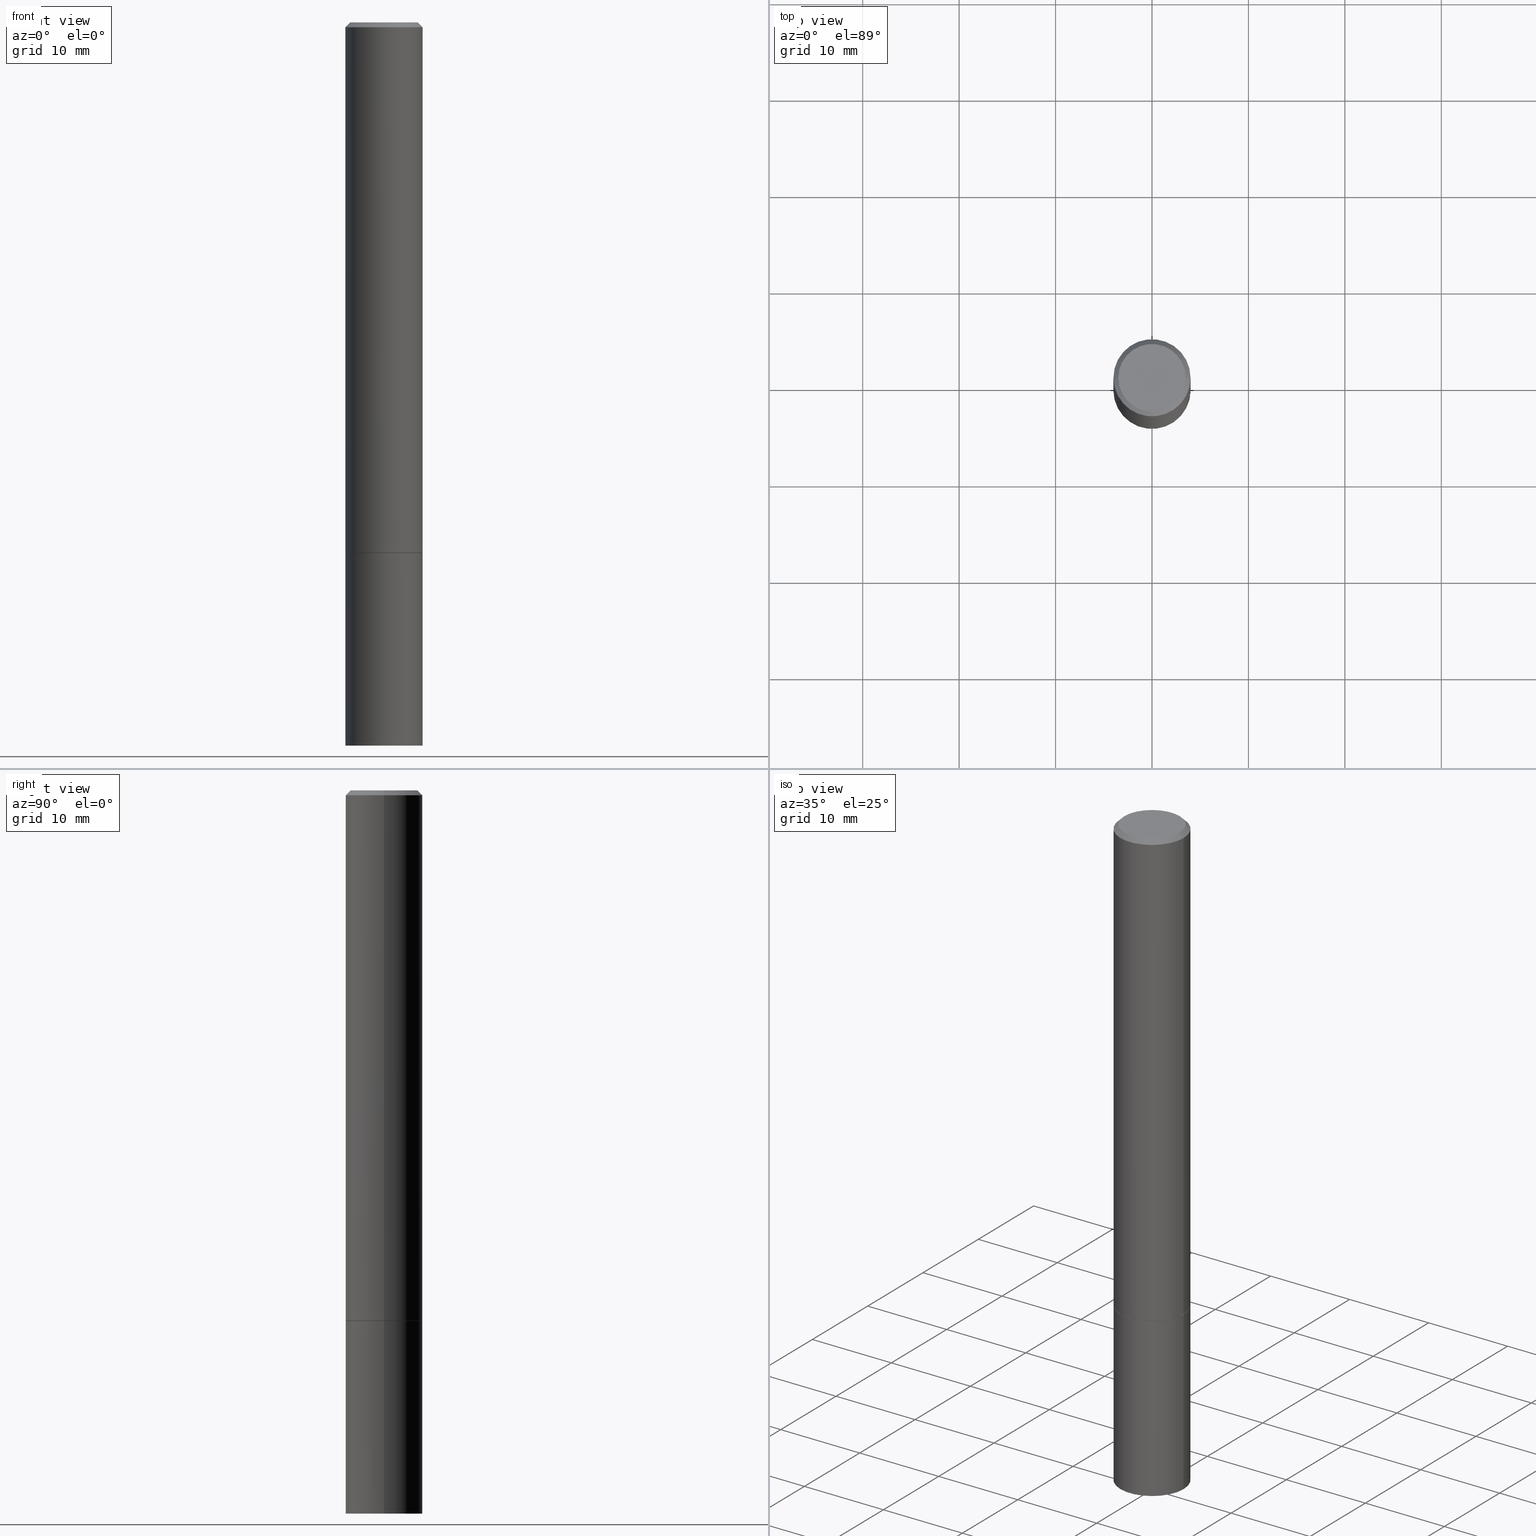
[diagram: canonical four-view strip — front | top / right | iso, engineering-drawing reading convention]
A machine part, canonical four-view strip (front | top / right | iso — engineering-drawing reading convention). The complete STEP part file that produces these views, byte-faithful:
ISO-10303-21;
HEADER;
FILE_DESCRIPTION (( 'STEP AP203' ),
    '1' );
FILE_NAME ('74348.STEP',
    '2024-02-29T08:54:08',
    ( '' ),
    ( '' ),
    'SwSTEP 2.0',
    'SolidWorks 2023',
    '' );
FILE_SCHEMA (( 'CONFIG_CONTROL_DESIGN' ));
ENDSEC;

DATA;
#1 = EDGE_CURVE ( 'NONE', #10, #33, #126, .T. ) ;
#2 = AXIS2_PLACEMENT_3D ( 'NONE', #4, #61, #149 ) ;
#3 = FACE_OUTER_BOUND ( 'NONE', #129, .T. ) ;
#4 = CARTESIAN_POINT ( 'NONE',  ( 4.890937612370282792E-31, -6.982962677686303935E-17, -0.02000000000000003858 ) ) ;
#5 =( NAMED_UNIT ( * ) PLANE_ANGLE_UNIT ( ) SI_UNIT ( $, .RADIAN. ) );
#6 = PERSON_AND_ORGANIZATION ( #360, #167 ) ;
#7 = AXIS2_PLACEMENT_3D ( 'NONE', #169, #203, #56 ) ;
#8 = ORIENTED_EDGE ( 'NONE', *, *, #107, .F. ) ;
#9 = DIRECTION ( 'NONE',  ( 0.000000000000000000, 0.000000000000000000, 1.000000000000000000 ) ) ;
#10 = VERTEX_POINT ( 'NONE', #97 ) ;
#11 = ADVANCED_FACE ( 'NONE', ( #325 ), #48, .T. ) ;
#12 = SHAPE_DEFINITION_REPRESENTATION ( #197, #286 ) ;
#13 = ORIENTED_EDGE ( 'NONE', *, *, #25, .F. ) ;
#14 = CC_DESIGN_DATE_AND_TIME_ASSIGNMENT ( #71, #154, ( #340 ) ) ;
#15 = VERTEX_POINT ( 'NONE', #249 ) ;
#16 = EDGE_LOOP ( 'NONE', ( #313, #274, #172, #155 ) ) ;
#17 = CARTESIAN_POINT ( 'NONE',  ( 7.220980290903470182E-29, -1.030964609733603853E-14, -2.952799999999999869 ) ) ;
#18 = DIRECTION ( 'NONE',  ( -2.445468806185136597E-29, 3.491481338843145583E-15, 1.000000000000000000 ) ) ;
#19 = FACE_OUTER_BOUND ( 'NONE', #353, .T. ) ;
#20 = DIRECTION ( 'NONE',  ( 1.000000000000000000, -6.982962677686261977E-15, 0.000000000000000000 ) ) ;
#21 = CARTESIAN_POINT ( 'NONE',  ( 9.601573681818595033E-16, 0.1374999999999997058, -4.779444278458812147E-16 ) ) ;
#22 = CIRCLE ( 'NONE', #242, 0.1574999999999996958 ) ;
#23 = DIRECTION ( 'NONE',  ( -2.445468806185136597E-29, 3.491481338843145583E-15, 1.000000000000000000 ) ) ;
#24 = DIRECTION ( 'NONE',  ( 1.000000000000000000, -6.982962677686265922E-15, 4.876176775795935793E-29 ) ) ;
#25 = EDGE_CURVE ( 'NONE', #241, #180, #301, .T. ) ;
#26 = DIRECTION ( 'NONE',  ( 1.000000000000000000, -6.982962677686268288E-15, 0.000000000000000000 ) ) ;
#27 = EDGE_LOOP ( 'NONE', ( #42, #207, #329, #210 ) ) ;
#28 = AXIS2_PLACEMENT_3D ( 'NONE', #284, #364, #24 ) ;
#29 = CARTESIAN_POINT ( 'NONE',  ( 5.295418152913294345E-29, -7.560453691130947423E-15, -2.165399999999999991 ) ) ;
#30 = CYLINDRICAL_SURFACE ( 'NONE', #7, 0.1574999999999998346 ) ;
#31 = APPROVAL ( #216, 'UNSPECIFIED' ) ;
#32 = CALENDAR_DATE ( 2024, 29, 2 ) ;
#33 = VERTEX_POINT ( 'NONE', #134 ) ;
#34 = PERSON_AND_ORGANIZATION ( #360, #167 ) ;
#35 = ORIENTED_EDGE ( 'NONE', *, *, #357, .F. ) ;
#36 = ADVANCED_FACE ( 'NONE', ( #19 ), #334, .F. ) ;
#37 = CALENDAR_DATE ( 2024, 29, 2 ) ;
#38 = EDGE_LOOP ( 'NONE', ( #226, #57, #63, #72 ) ) ;
#39 = VERTEX_POINT ( 'NONE', #137 ) ;
#40 = APPLICATION_PROTOCOL_DEFINITION ( 'international standard', 'config_control_design', 1994, #83 ) ;
#41 = LOCAL_TIME ( 3, 54, 8.000000000000000000, #125 ) ;
#42 = ORIENTED_EDGE ( 'NONE', *, *, #295, .F. ) ;
#43 = VECTOR ( 'NONE', #358, 39.37007874015748143 ) ;
#44 = DIRECTION ( 'NONE',  ( 2.445468806185136597E-29, -3.491481338843145583E-15, -1.000000000000000000 ) ) ;
#45 = DIRECTION ( 'NONE',  ( -2.445468806185136597E-29, 3.491481338843145583E-15, 1.000000000000000000 ) ) ;
#46 = DIRECTION ( 'NONE',  ( -1.000000000000000000, 6.982962677686265922E-15, -4.876176775795935793E-29 ) ) ;
#47 = CIRCLE ( 'NONE', #146, 0.1565000000000000002 ) ;
#48 = CONICAL_SURFACE ( 'NONE', #122, 0.1565000000000000002, 0.7853981633973801113 ) ;
#49 = EDGE_CURVE ( 'NONE', #271, #354, #229, .T. ) ;
#50 = DIRECTION ( 'NONE',  ( -0.7071067811865466846, 2.468850131082247989E-15, -0.7071067811865483499 ) ) ;
#51 = DIRECTION ( 'NONE',  ( 1.000000000000000000, -6.982962677686265922E-15, 4.876176775795935232E-29 ) ) ;
#52 = CC_DESIGN_APPROVAL ( #192, ( #79 ) ) ;
#53 = CIRCLE ( 'NONE', #253, 0.1574999999999999178 ) ;
#54 = FACE_OUTER_BOUND ( 'NONE', #102, .T. ) ;
#55 = ADVANCED_FACE ( 'NONE', ( #161 ), #333, .T. ) ;
#56 = DIRECTION ( 'NONE',  ( 1.000000000000000000, -6.982962677686265922E-15, 4.876176775795935793E-29 ) ) ;
#57 = ORIENTED_EDGE ( 'NONE', *, *, #70, .T. ) ;
#58 = CARTESIAN_POINT ( 'NONE',  ( 5.295418152913294345E-29, -7.560453691130947423E-15, -2.165399999999999991 ) ) ;
#59 = APPROVAL_PERSON_ORGANIZATION ( #209, #31, #262 ) ;
#60 = ADVANCED_FACE ( 'NONE', ( #110 ), #337, .F. ) ;
#61 = DIRECTION ( 'NONE',  ( 2.445468806185136597E-29, -3.491481338843145583E-15, -1.000000000000000000 ) ) ;
#62 = CALENDAR_DATE ( 2024, 29, 2 ) ;
#63 = ORIENTED_EDGE ( 'NONE', *, *, #78, .F. ) ;
#64 = CALENDAR_DATE ( 2024, 29, 2 ) ;
#65 = ORIENTED_EDGE ( 'NONE', *, *, #78, .T. ) ;
#66 = APPROVAL_PERSON_ORGANIZATION ( #156, #115, #211 ) ;
#67 = COORDINATED_UNIVERSAL_TIME_OFFSET ( 5, 0, .BEHIND. ) ;
#68 = CIRCLE ( 'NONE', #317, 0.1565000000000000002 ) ;
#69 = CARTESIAN_POINT ( 'NONE',  ( 5.295418152913294345E-29, -7.560453691130947423E-15, -2.165399999999999991 ) ) ;
#70 = EDGE_CURVE ( 'NONE', #298, #244, #330, .T. ) ;
#71 = DATE_AND_TIME ( #238, #41 ) ;
#72 = ORIENTED_EDGE ( 'NONE', *, *, #1, .F. ) ;
#73 = ORIENTED_EDGE ( 'NONE', *, *, #357, .T. ) ;
#74 = CYLINDRICAL_SURFACE ( 'NONE', #181, 0.1575000000000000011 ) ;
#75 = CIRCLE ( 'NONE', #311, 0.1574999999999996958 ) ;
#76 = DIRECTION ( 'NONE',  ( -2.445468806185136597E-29, 3.491481338843145583E-15, 1.000000000000000000 ) ) ;
#77 = DIRECTION ( 'NONE',  ( -2.445468806185136877E-29, 3.491481338843145188E-15, 1.000000000000000000 ) ) ;
#78 = EDGE_CURVE ( 'NONE', #33, #244, #266, .T. ) ;
#79 = PRODUCT_DEFINITION_FORMATION_WITH_SPECIFIED_SOURCE ( 'ANY', '', #331, .NOT_KNOWN. ) ;
#80 = CARTESIAN_POINT ( 'NONE',  ( 0.000000000000000000, 0.000000000000000000, 0.000000000000000000 ) ) ;
#81 = AXIS2_PLACEMENT_3D ( 'NONE', #160, #250, #361 ) ;
#82 = LINE ( 'NONE', #218, #111 ) ;
#83 = APPLICATION_CONTEXT ( 'configuration controlled 3d designs of mechanical parts and assemblies' ) ;
#84 = CARTESIAN_POINT ( 'NONE',  ( 1.099816621735659069E-15, 0.1574999999999896760, -2.952800000000000313 ) ) ;
#85 = FACE_OUTER_BOUND ( 'NONE', #27, .T. ) ;
#86 = AXIS2_PLACEMENT_3D ( 'NONE', #162, #336, #359 ) ;
#87 =( CONVERSION_BASED_UNIT ( 'INCH', #342 ) LENGTH_UNIT ( ) NAMED_UNIT ( #273 ) );
#88 = CYLINDRICAL_SURFACE ( 'NONE', #117, 0.1574999999999998346 ) ;
#89 = DIRECTION ( 'NONE',  ( 1.000000000000000000, -6.982962677686265922E-15, 0.000000000000000000 ) ) ;
#90 = CC_DESIGN_APPROVAL ( #115, ( #340 ) ) ;
#91 = VECTOR ( 'NONE', #349, 39.37007874015748143 ) ;
#92 = COORDINATED_UNIVERSAL_TIME_OFFSET ( 5, 0, .BEHIND. ) ;
#93 = APPLICATION_PROTOCOL_DEFINITION ( 'international standard', 'config_control_design', 1994, #158 ) ;
#94 = ORIENTED_EDGE ( 'NONE', *, *, #362, .T. ) ;
#95 = CARTESIAN_POINT ( 'NONE',  ( 0.000000000000000000, 0.000000000000000000, 0.000000000000000000 ) ) ;
#96 = ADVANCED_FACE ( 'NONE', ( #252 ), #74, .T. ) ;
#97 = CARTESIAN_POINT ( 'NONE',  ( 0.1565000000000000002, -8.653287350188848100E-15, -2.165399999999999991 ) ) ;
#98 = DATE_AND_TIME ( #37, #287 ) ;
#99 = CIRCLE ( 'NONE', #307, 0.1374999999999997058 ) ;
#100 = ORIENTED_EDGE ( 'NONE', *, *, #362, .F. ) ;
#101 = PERSON_AND_ORGANIZATION ( #360, #167 ) ;
#102 = EDGE_LOOP ( 'NONE', ( #65, #177, #213, #133 ) ) ;
#103 = PRODUCT_DEFINITION ( 'UNKNOWN', '', #79, #290 ) ;
#104 = CARTESIAN_POINT ( 'NONE',  ( 4.890937612370282792E-31, -6.982962677686303935E-17, -0.02000000000000003858 ) ) ;
#105 = LINE ( 'NONE', #247, #43 ) ;
#106 = AXIS2_PLACEMENT_3D ( 'NONE', #201, #202, #289 ) ;
#107 = EDGE_CURVE ( 'NONE', #217, #132, #82, .T. ) ;
#108 = LINE ( 'NONE', #335, #235 ) ;
#109 = DIRECTION ( 'NONE',  ( 2.438088387897960049E-29, -3.491481338843145188E-15, -1.000000000000000000 ) ) ;
#110 = FACE_OUTER_BOUND ( 'NONE', #157, .T. ) ;
#111 = VECTOR ( 'NONE', #196, 39.37007874015748143 ) ;
#112 = DIRECTION ( 'NONE',  ( -2.445468806185136597E-29, 3.491481338843145583E-15, 1.000000000000000000 ) ) ;
#113 = EDGE_CURVE ( 'NONE', #39, #15, #279, .T. ) ;
#114 = FACE_OUTER_BOUND ( 'NONE', #185, .T. ) ;
#115 = APPROVAL ( #348, 'UNSPECIFIED' ) ;
#116 = CARTESIAN_POINT ( 'NONE',  ( 0.1374999999999997058, -1.046838268059730322E-15, 4.268512490107428597E-18 ) ) ;
#117 = AXIS2_PLACEMENT_3D ( 'NONE', #288, #112, #173 ) ;
#118 = DIRECTION ( 'NONE',  ( -2.445468806185136597E-29, 3.491481338843145583E-15, 1.000000000000000000 ) ) ;
#119 = EDGE_CURVE ( 'NONE', #180, #271, #189, .T. ) ;
#120 = DIRECTION ( 'NONE',  ( 1.000000000000000000, -6.982962677686265922E-15, 4.876173381029110692E-29 ) ) ;
#121 = CIRCLE ( 'NONE', #272, 0.1374999999999997058 ) ;
#122 = AXIS2_PLACEMENT_3D ( 'NONE', #69, #182, #297 ) ;
#123 = ORIENTED_EDGE ( 'NONE', *, *, #260, .F. ) ;
#124 = ADVANCED_FACE ( 'NONE', ( #138 ), #223, .T. ) ;
#125 = COORDINATED_UNIVERSAL_TIME_OFFSET ( 5, 0, .BEHIND. ) ;
#126 = LINE ( 'NONE', #239, #91 ) ;
#127 = CC_DESIGN_PERSON_AND_ORGANIZATION_ASSIGNMENT ( #6, #292, ( #79 ) ) ;
#128 = PERSON_AND_ORGANIZATION_ROLE ( 'design_supplier' ) ;
#129 = EDGE_LOOP ( 'NONE', ( #159, #320, #294, #100 ) ) ;
#130 = PERSON_AND_ORGANIZATION ( #360, #167 ) ;
#131 = EDGE_CURVE ( 'NONE', #298, #10, #68, .T. ) ;
#132 = VERTEX_POINT ( 'NONE', #166 ) ;
#133 = ORIENTED_EDGE ( 'NONE', *, *, #183, .F. ) ;
#134 = CARTESIAN_POINT ( 'NONE',  ( 0.1574999999999999178, -8.656778831527689529E-15, -2.164399999999999658 ) ) ;
#135 = DIRECTION ( 'NONE',  ( 1.000000000000000000, -6.982962677686267499E-15, 0.000000000000000000 ) ) ;
#136 = VECTOR ( 'NONE', #303, 39.37007874015748143 ) ;
#137 = CARTESIAN_POINT ( 'NONE',  ( -0.1374999999999997058, 9.950721815702905608E-16, 4.268512490093574228E-18 ) ) ;
#138 = FACE_OUTER_BOUND ( 'NONE', #237, .T. ) ;
#139 = CARTESIAN_POINT ( 'NONE',  ( 5.295418152913294345E-29, -7.560453691130947423E-15, -2.165399999999999991 ) ) ;
#140 = CC_DESIGN_DATE_AND_TIME_ASSIGNMENT ( #296, #328, ( #103 ) ) ;
#141 = AXIS2_PLACEMENT_3D ( 'NONE', #139, #280, #355 ) ;
#142 = DIRECTION ( 'NONE',  ( -2.445468806185136597E-29, 3.491481338843145583E-15, 1.000000000000000000 ) ) ;
#143 =( LENGTH_UNIT ( ) NAMED_UNIT ( * ) SI_UNIT ( $, .METRE. ) );
#144 = ADVANCED_FACE ( 'NONE', ( #281 ), #351, .T. ) ;
#145 = CARTESIAN_POINT ( 'NONE',  ( -0.1575000000000000011, -7.815945085411336161E-15, -2.165399999999999991 ) ) ;
#146 = AXIS2_PLACEMENT_3D ( 'NONE', #29, #118, #338 ) ;
#147 = CLOSED_SHELL ( 'NONE', ( #124, #343, #36, #96 ) ) ;
#148 = FACE_OUTER_BOUND ( 'NONE', #300, .T. ) ;
#149 = DIRECTION ( 'NONE',  ( -1.000000000000000000, 6.982962677686265922E-15, 0.000000000000000000 ) ) ;
#150 = PERSON_AND_ORGANIZATION_ROLE ( 'design_owner' ) ;
#151 = ORIENTED_EDGE ( 'NONE', *, *, #49, .T. ) ;
#152 = SECURITY_CLASSIFICATION_LEVEL ( 'unclassified' ) ;
#153 = ORIENTED_EDGE ( 'NONE', *, *, #131, .F. ) ;
#154 = DATE_TIME_ROLE ( 'classification_date' ) ;
#155 = ORIENTED_EDGE ( 'NONE', *, *, #212, .F. ) ;
#156 = PERSON_AND_ORGANIZATION ( #360, #167 ) ;
#157 = EDGE_LOOP ( 'NONE', ( #73, #243 ) ) ;
#158 = APPLICATION_CONTEXT ( 'configuration controlled 3d designs of mechanical parts and assemblies' ) ;
#159 = ORIENTED_EDGE ( 'NONE', *, *, #195, .F. ) ;
#160 = CARTESIAN_POINT ( 'NONE',  ( 5.295418152913294345E-29, -7.560453691130947423E-15, -2.165399999999999991 ) ) ;
#161 = FACE_OUTER_BOUND ( 'NONE', #16, .T. ) ;
#162 = CARTESIAN_POINT ( 'NONE',  ( 5.292972684107108742E-29, -7.556962209792102838E-15, -2.164399999999999658 ) ) ;
#163 = CONICAL_SURFACE ( 'NONE', #2, 0.1574999999999996958, 0.7853981633974471688 ) ;
#164 = CARTESIAN_POINT ( 'NONE',  ( -0.1575000000000000011, 1.119104808822157801E-15, -7.747322767151475583E-30 ) ) ;
#165 = CC_DESIGN_PERSON_AND_ORGANIZATION_ASSIGNMENT ( #299, #150, ( #331 ) ) ;
#166 = CARTESIAN_POINT ( 'NONE',  ( 0.1574999999999996958, -1.150358061425877105E-15, -0.02000000000000003858 ) ) ;
#167 = ORGANIZATION ( 'UNSPECIFIED', 'UNSPECIFIED', '' ) ;
#168 = MANIFOLD_SOLID_BREP ( 'Body-Move/Copy2[1]', #147 ) ;
#169 = CARTESIAN_POINT ( 'NONE',  ( 0.000000000000000000, 0.000000000000000000, 0.000000000000000000 ) ) ;
#170 = DIRECTION ( 'NONE',  ( -1.000000000000000000, 6.982962677686265922E-15, -4.876176775795935793E-29 ) ) ;
#171 = MANIFOLD_SOLID_BREP ( 'Body-Move/Copy2[2]', #174 ) ;
#172 = ORIENTED_EDGE ( 'NONE', *, *, #1, .T. ) ;
#173 = DIRECTION ( 'NONE',  ( 1.000000000000000000, -6.982962677686265922E-15, 4.876176775795935793E-29 ) ) ;
#174 = CLOSED_SHELL ( 'NONE', ( #11, #248, #277, #144, #314, #55, #322, #60 ) ) ;
#175 = DIRECTION ( 'NONE',  ( -2.445468806185136597E-29, 3.491481338843145583E-15, 1.000000000000000000 ) ) ;
#176 = DATE_AND_TIME ( #62, #204 ) ;
#177 = ORIENTED_EDGE ( 'NONE', *, *, #195, .T. ) ;
#178 = APPROVAL_ROLE ( '' ) ;
#179 = PRODUCT_RELATED_PRODUCT_CATEGORY ( 'detail', '', ( #331 ) ) ;
#180 = VERTEX_POINT ( 'NONE', #245 ) ;
#181 = AXIS2_PLACEMENT_3D ( 'NONE', #80, #76, #51 ) ;
#182 = DIRECTION ( 'NONE',  ( -2.445468806185136597E-29, 3.491481338843145583E-15, 1.000000000000000000 ) ) ;
#183 = EDGE_CURVE ( 'NONE', #33, #132, #105, .T. ) ;
#184 = PERSON_AND_ORGANIZATION_ROLE ( 'classification_officer' ) ;
#185 = EDGE_LOOP ( 'NONE', ( #261, #153 ) ) ;
#186 = EDGE_LOOP ( 'NONE', ( #285, #350, #323, #291 ) ) ;
#187 = AXIS2_PLACEMENT_3D ( 'NONE', #84, #231, #170 ) ;
#188 = VECTOR ( 'NONE', #50, 39.37007874015748143 ) ;
#189 = LINE ( 'NONE', #164, #136 ) ;
#190 = CARTESIAN_POINT ( 'NONE',  ( 1.099816621735639545E-15, 0.1574999999999924516, -2.165400000000000436 ) ) ;
#191 = CARTESIAN_POINT ( 'NONE',  ( 5.292972684107108742E-29, -7.556962209792102838E-15, -2.164399999999999658 ) ) ;
#192 = APPROVAL ( #318, 'UNSPECIFIED' ) ;
#193 = CC_DESIGN_SECURITY_CLASSIFICATION ( #340, ( #79 ) ) ;
#194 = DIRECTION ( 'NONE',  ( -2.445468806185136597E-29, 3.491481338843145583E-15, 1.000000000000000000 ) ) ;
#195 = EDGE_CURVE ( 'NONE', #244, #15, #108, .T. ) ;
#196 = DIRECTION ( 'NONE',  ( 0.7071067811865466846, -7.319954787623252890E-15, -0.7071067811865483499 ) ) ;
#197 = PRODUCT_DEFINITION_SHAPE ( 'NONE', 'NONE',  #103 ) ;
#198 = DIRECTION ( 'NONE',  ( -2.445468806185136597E-29, 3.491481338843145583E-15, 1.000000000000000000 ) ) ;
#199 = DIRECTION ( 'NONE',  ( -2.445468806185136597E-29, 3.491481338843145583E-15, 1.000000000000000000 ) ) ;
#200 = ORIENTED_EDGE ( 'NONE', *, *, #25, .T. ) ;
#201 = CARTESIAN_POINT ( 'NONE',  ( 7.220980290903470182E-29, -1.030964609733603853E-14, -2.952799999999999869 ) ) ;
#202 = DIRECTION ( 'NONE',  ( -2.445468806185136597E-29, 3.491481338843145583E-15, 1.000000000000000000 ) ) ;
#203 = DIRECTION ( 'NONE',  ( -2.445468806185136597E-29, 3.491481338843145583E-15, 1.000000000000000000 ) ) ;
#204 = LOCAL_TIME ( 3, 54, 8.000000000000000000, #67 ) ;
#205 = CC_DESIGN_PERSON_AND_ORGANIZATION_ASSIGNMENT ( #101, #270, ( #103 ) ) ;
#206 =( NAMED_UNIT ( * ) SI_UNIT ( $, .STERADIAN. ) SOLID_ANGLE_UNIT ( ) );
#207 = ORIENTED_EDGE ( 'NONE', *, *, #107, .T. ) ;
#208 = CC_DESIGN_PERSON_AND_ORGANIZATION_ASSIGNMENT ( #34, #128, ( #79 ) ) ;
#209 = PERSON_AND_ORGANIZATION ( #360, #167 ) ;
#210 = ORIENTED_EDGE ( 'NONE', *, *, #113, .F. ) ;
#211 = APPROVAL_ROLE ( '' ) ;
#212 = EDGE_CURVE ( 'NONE', #244, #33, #53, .T. ) ;
#213 = ORIENTED_EDGE ( 'NONE', *, *, #232, .F. ) ;
#214 = AXIS2_PLACEMENT_3D ( 'NONE', #304, #45, #276 ) ;
#215 = ORIENTED_EDGE ( 'NONE', *, *, #255, .F. ) ;
#216 = APPROVAL_STATUS ( 'not_yet_approved' ) ;
#217 = VERTEX_POINT ( 'NONE', #116 ) ;
#218 = CARTESIAN_POINT ( 'NONE',  ( 0.1574999999999996958, -1.150358061425877105E-15, -0.02000000000000003858 ) ) ;
#219 = AXIS2_PLACEMENT_3D ( 'NONE', #17, #194, #20 ) ;
#220 = CARTESIAN_POINT ( 'NONE',  ( -0.1565000000000000002, -6.448454309666390039E-15, -2.165399999999999991 ) ) ;
#221 = CARTESIAN_POINT ( 'NONE',  ( -0.1574999999999996958, 1.029986994958721618E-15, -0.02000000000000003858 ) ) ;
#222 = DIRECTION ( 'NONE',  ( 2.438088387897960049E-29, -3.491481338843145188E-15, -1.000000000000000000 ) ) ;
#223 = CYLINDRICAL_SURFACE ( 'NONE', #214, 0.1575000000000000011 ) ;
#224 = CARTESIAN_POINT ( 'NONE',  ( 0.1575000000000000011, -1.140946271907162522E-14, -2.952799999999999869 ) ) ;
#225 = DIRECTION ( 'NONE',  ( 1.000000000000000000, -6.982962677686265922E-15, 4.876173381029110692E-29 ) ) ;
#226 = ORIENTED_EDGE ( 'NONE', *, *, #327, .T. ) ;
#227 = EDGE_CURVE ( 'NONE', #180, #241, #251, .T. ) ;
#228 = DIRECTION ( 'NONE',  ( -2.445468806185136877E-29, 3.491481338843145188E-15, 1.000000000000000000 ) ) ;
#229 = CIRCLE ( 'NONE', #81, 0.1575000000000000011 ) ;
#230 = CARTESIAN_POINT ( 'NONE',  ( -0.1574999999999999178, -2.694291109462323887E-15, -2.164399999999999658 ) ) ;
#231 = DIRECTION ( 'NONE',  ( 2.438088387897960049E-29, -3.491481338843145188E-15, -1.000000000000000000 ) ) ;
#232 = EDGE_CURVE ( 'NONE', #132, #15, #75, .T. ) ;
#233 = DATE_AND_TIME ( #32, #257 ) ;
#234 = APPROVAL_PERSON_ORGANIZATION ( #130, #192, #178 ) ;
#235 = VECTOR ( 'NONE', #77, 39.37007874015748143 ) ;
#236 = MECHANICAL_CONTEXT ( 'NONE', #83, 'mechanical' ) ;
#237 = EDGE_LOOP ( 'NONE', ( #200, #269, #215, #123 ) ) ;
#238 = CALENDAR_DATE ( 2024, 29, 2 ) ;
#239 = CARTESIAN_POINT ( 'NONE',  ( 0.1565000000000000002, -8.653287350188848100E-15, -2.165399999999999991 ) ) ;
#240 = PERSON_AND_ORGANIZATION ( #360, #167 ) ;
#241 = VERTEX_POINT ( 'NONE', #224 ) ;
#242 = AXIS2_PLACEMENT_3D ( 'NONE', #259, #283, #89 ) ;
#243 = ORIENTED_EDGE ( 'NONE', *, *, #295, .T. ) ;
#244 = VERTEX_POINT ( 'NONE', #230 ) ;
#245 = CARTESIAN_POINT ( 'NONE',  ( -0.1575000000000000011, -7.815945085411336161E-15, -2.952799999999999869 ) ) ;
#246 = AXIS2_PLACEMENT_3D ( 'NONE', #190, #222, #305 ) ;
#247 = CARTESIAN_POINT ( 'NONE',  ( 0.1574999999999998346, -1.099816621735585705E-15, 7.679978421878591026E-30 ) ) ;
#248 = ADVANCED_FACE ( 'NONE', ( #54 ), #30, .T. ) ;
#249 = CARTESIAN_POINT ( 'NONE',  ( -0.1574999999999996958, 1.029986994958721618E-15, -0.02000000000000003858 ) ) ;
#250 = DIRECTION ( 'NONE',  ( -2.445468806185136597E-29, 3.491481338843145583E-15, 1.000000000000000000 ) ) ;
#251 = CIRCLE ( 'NONE', #106, 0.1575000000000000011 ) ;
#252 = FACE_OUTER_BOUND ( 'NONE', #186, .T. ) ;
#253 = AXIS2_PLACEMENT_3D ( 'NONE', #191, #199, #366 ) ;
#254 = CARTESIAN_POINT ( 'NONE',  ( -1.043851414335219820E-46, 1.490343170380447200E-32, 4.268512490100411279E-18 ) ) ;
#255 = EDGE_CURVE ( 'NONE', #354, #271, #356, .T. ) ;
#256 = CARTESIAN_POINT ( 'NONE',  ( 0.1575000000000000011, -1.099816621735586889E-15, 7.679978421878598033E-30 ) ) ;
#257 = LOCAL_TIME ( 3, 54, 8.000000000000000000, #321 ) ;
#258 = PLANE ( 'NONE',  #28 ) ;
#259 = CARTESIAN_POINT ( 'NONE',  ( 4.890937612370282792E-31, -6.982962677686303935E-17, -0.02000000000000003858 ) ) ;
#260 = EDGE_CURVE ( 'NONE', #241, #354, #339, .T. ) ;
#261 = ORIENTED_EDGE ( 'NONE', *, *, #327, .F. ) ;
#262 = APPROVAL_ROLE ( '' ) ;
#263 = CC_DESIGN_PERSON_AND_ORGANIZATION_ASSIGNMENT ( #240, #184, ( #340 ) ) ;
#264 = APPROVAL_DATE_TIME ( #176, #192 ) ;
#265 = ORIENTED_EDGE ( 'NONE', *, *, #113, .T. ) ;
#266 = CIRCLE ( 'NONE', #86, 0.1574999999999999178 ) ;
#267 = ORIENTED_EDGE ( 'NONE', *, *, #227, .F. ) ;
#268 = APPROVAL_DATE_TIME ( #98, #115 ) ;
#269 = ORIENTED_EDGE ( 'NONE', *, *, #119, .T. ) ;
#270 = PERSON_AND_ORGANIZATION_ROLE ( 'creator' ) ;
#271 = VERTEX_POINT ( 'NONE', #145 ) ;
#272 = AXIS2_PLACEMENT_3D ( 'NONE', #315, #198, #225 ) ;
#273 = DIMENSIONAL_EXPONENTS ( 1.000000000000000000, 0.000000000000000000, 0.000000000000000000, 0.000000000000000000, 0.000000000000000000, 0.000000000000000000, 0.000000000000000000 ) ;
#274 = ORIENTED_EDGE ( 'NONE', *, *, #131, .T. ) ;
#275 = DIRECTION ( 'NONE',  ( -1.000000000000000000, 6.982962677686265922E-15, 0.000000000000000000 ) ) ;
#276 = DIRECTION ( 'NONE',  ( 1.000000000000000000, -6.982962677686265922E-15, 4.876176775795935232E-29 ) ) ;
#277 = ADVANCED_FACE ( 'NONE', ( #85 ), #163, .T. ) ;
#278 = VECTOR ( 'NONE', #228, 39.37007874015748143 ) ;
#279 = LINE ( 'NONE', #221, #188 ) ;
#280 = DIRECTION ( 'NONE',  ( -2.445468806185136597E-29, 3.491481338843145583E-15, 1.000000000000000000 ) ) ;
#281 = FACE_OUTER_BOUND ( 'NONE', #326, .T. ) ;
#282 = AXIS2_PLACEMENT_3D ( 'NONE', #58, #23, #26 ) ;
#283 = DIRECTION ( 'NONE',  ( -2.445468806185136597E-29, 3.491481338843145583E-15, 1.000000000000000000 ) ) ;
#284 = CARTESIAN_POINT ( 'NONE',  ( 5.295418152913294345E-29, -7.560453691130947423E-15, -2.165399999999999991 ) ) ;
#285 = ORIENTED_EDGE ( 'NONE', *, *, #119, .F. ) ;
#286 = ADVANCED_BREP_SHAPE_REPRESENTATION ( '74348', ( #168, #171, #306 ), #302 ) ;
#287 = LOCAL_TIME ( 3, 54, 8.000000000000000000, #324 ) ;
#288 = CARTESIAN_POINT ( 'NONE',  ( 0.000000000000000000, 0.000000000000000000, 0.000000000000000000 ) ) ;
#289 = DIRECTION ( 'NONE',  ( 1.000000000000000000, -6.982962677686261977E-15, 0.000000000000000000 ) ) ;
#290 = DESIGN_CONTEXT ( 'detailed design', #158, 'design' ) ;
#291 = ORIENTED_EDGE ( 'NONE', *, *, #49, .F. ) ;
#292 = PERSON_AND_ORGANIZATION_ROLE ( 'creator' ) ;
#293 = LOCAL_TIME ( 3, 54, 8.000000000000000000, #92 ) ;
#294 = ORIENTED_EDGE ( 'NONE', *, *, #183, .T. ) ;
#295 = EDGE_CURVE ( 'NONE', #217, #39, #99, .T. ) ;
#296 = DATE_AND_TIME ( #64, #293 ) ;
#297 = DIRECTION ( 'NONE',  ( 1.000000000000000000, -6.982962677686267499E-15, 0.000000000000000000 ) ) ;
#298 = VERTEX_POINT ( 'NONE', #365 ) ;
#299 = PERSON_AND_ORGANIZATION ( #360, #167 ) ;
#300 = EDGE_LOOP ( 'NONE', ( #13, #267 ) ) ;
#301 = CIRCLE ( 'NONE', #219, 0.1575000000000000011 ) ;
#302 =( GEOMETRIC_REPRESENTATION_CONTEXT ( 3 ) GLOBAL_UNCERTAINTY_ASSIGNED_CONTEXT ( ( #319 ) ) GLOBAL_UNIT_ASSIGNED_CONTEXT ( ( #87, #5, #206 ) ) REPRESENTATION_CONTEXT ( 'NONE', 'WORKASPACE' ) );
#303 = DIRECTION ( 'NONE',  ( -2.445468806185136877E-29, 3.491481338843145188E-15, 1.000000000000000000 ) ) ;
#304 = CARTESIAN_POINT ( 'NONE',  ( 0.000000000000000000, 0.000000000000000000, 0.000000000000000000 ) ) ;
#305 = DIRECTION ( 'NONE',  ( -1.000000000000000000, 6.982962677686265922E-15, -4.876176775795935793E-29 ) ) ;
#306 = AXIS2_PLACEMENT_3D ( 'NONE', #95, #9, #352 ) ;
#307 = AXIS2_PLACEMENT_3D ( 'NONE', #254, #142, #120 ) ;
#308 = DIRECTION ( 'NONE',  ( -0.7071067811864992780, 7.493145998870180611E-15, 0.7071067811865957564 ) ) ;
#309 = CARTESIAN_POINT ( 'NONE',  ( 5.295418152913294345E-29, -7.560453691130947423E-15, -2.165399999999999991 ) ) ;
#310 = CARTESIAN_POINT ( 'NONE',  ( 0.1575000000000000011, -8.660270312866534114E-15, -2.165399999999999991 ) ) ;
#311 = AXIS2_PLACEMENT_3D ( 'NONE', #316, #175, #312 ) ;
#312 = DIRECTION ( 'NONE',  ( 1.000000000000000000, -6.982962677686265922E-15, 0.000000000000000000 ) ) ;
#313 = ORIENTED_EDGE ( 'NONE', *, *, #70, .F. ) ;
#314 = ADVANCED_FACE ( 'NONE', ( #3 ), #88, .T. ) ;
#315 = CARTESIAN_POINT ( 'NONE',  ( -1.043851414335219820E-46, 1.490343170380447200E-32, 4.268512490100411279E-18 ) ) ;
#316 = CARTESIAN_POINT ( 'NONE',  ( 4.890937612370282792E-31, -6.982962677686303935E-17, -0.02000000000000003858 ) ) ;
#317 = AXIS2_PLACEMENT_3D ( 'NONE', #309, #18, #135 ) ;
#318 = APPROVAL_STATUS ( 'not_yet_approved' ) ;
#319 = UNCERTAINTY_MEASURE_WITH_UNIT (LENGTH_MEASURE( 1.000000000000000082E-05 ), #87, 'distance_accuracy_value', 'NONE');
#320 = ORIENTED_EDGE ( 'NONE', *, *, #212, .T. ) ;
#321 = COORDINATED_UNIVERSAL_TIME_OFFSET ( 5, 0, .BEHIND. ) ;
#322 = ADVANCED_FACE ( 'NONE', ( #114 ), #258, .F. ) ;
#323 = ORIENTED_EDGE ( 'NONE', *, *, #260, .T. ) ;
#324 = COORDINATED_UNIVERSAL_TIME_OFFSET ( 5, 0, .BEHIND. ) ;
#325 = FACE_OUTER_BOUND ( 'NONE', #38, .T. ) ;
#326 = EDGE_LOOP ( 'NONE', ( #8, #35, #265, #94 ) ) ;
#327 = EDGE_CURVE ( 'NONE', #10, #298, #47, .T. ) ;
#328 = DATE_TIME_ROLE ( 'creation_date' ) ;
#329 = ORIENTED_EDGE ( 'NONE', *, *, #232, .T. ) ;
#330 = LINE ( 'NONE', #220, #341 ) ;
#331 = PRODUCT ( '74348', '74348', '', ( #236 ) ) ;
#332 = CC_DESIGN_APPROVAL ( #31, ( #103 ) ) ;
#333 = CONICAL_SURFACE ( 'NONE', #141, 0.1565000000000000002, 0.7853981633973801113 ) ;
#334 = PLANE ( 'NONE',  #246 ) ;
#335 = CARTESIAN_POINT ( 'NONE',  ( -0.1574999999999998346, 1.119104808822156617E-15, -7.747322767151467176E-30 ) ) ;
#336 = DIRECTION ( 'NONE',  ( -2.445468806185136597E-29, 3.491481338843145583E-15, 1.000000000000000000 ) ) ;
#337 = PLANE ( 'NONE',  #346 ) ;
#338 = DIRECTION ( 'NONE',  ( 1.000000000000000000, -6.982962677686267499E-15, 0.000000000000000000 ) ) ;
#339 = LINE ( 'NONE', #256, #278 ) ;
#340 = SECURITY_CLASSIFICATION ( '', '', #152 ) ;
#341 = VECTOR ( 'NONE', #308, 39.37007874015748143 ) ;
#342 = LENGTH_MEASURE_WITH_UNIT ( LENGTH_MEASURE( 0.02539999999999999897 ), #143 );
#343 = ADVANCED_FACE ( 'NONE', ( #148 ), #344, .T. ) ;
#344 = PLANE ( 'NONE',  #187 ) ;
#345 = APPROVAL_DATE_TIME ( #233, #31 ) ;
#346 = AXIS2_PLACEMENT_3D ( 'NONE', #21, #109, #46 ) ;
#347 = ORIENTED_EDGE ( 'NONE', *, *, #255, .T. ) ;
#348 = APPROVAL_STATUS ( 'not_yet_approved' ) ;
#349 = DIRECTION ( 'NONE',  ( 0.7071067811864992780, -2.468850131081751401E-15, 0.7071067811865957564 ) ) ;
#350 = ORIENTED_EDGE ( 'NONE', *, *, #227, .T. ) ;
#351 = CONICAL_SURFACE ( 'NONE', #363, 0.1574999999999996958, 0.7853981633974471688 ) ;
#352 = DIRECTION ( 'NONE',  ( 1.000000000000000000, 0.000000000000000000, 0.000000000000000000 ) ) ;
#353 = EDGE_LOOP ( 'NONE', ( #347, #151 ) ) ;
#354 = VERTEX_POINT ( 'NONE', #310 ) ;
#355 = DIRECTION ( 'NONE',  ( 1.000000000000000000, -6.982962677686267499E-15, 0.000000000000000000 ) ) ;
#356 = CIRCLE ( 'NONE', #282, 0.1575000000000000011 ) ;
#357 = EDGE_CURVE ( 'NONE', #39, #217, #121, .T. ) ;
#358 = DIRECTION ( 'NONE',  ( -2.445468806185136877E-29, 3.491481338843145188E-15, 1.000000000000000000 ) ) ;
#359 = DIRECTION ( 'NONE',  ( 1.000000000000000000, -6.982962677686265922E-15, 0.000000000000000000 ) ) ;
#360 = PERSON ( 'UNSPECIFIED', 'UNSPECIFIED', 'UNSPECIFIED', ('UNSPECIFIED'), ('UNSPECIFIED'), ('UNSPECIFIED') ) ;
#361 = DIRECTION ( 'NONE',  ( 1.000000000000000000, -6.982962677686268288E-15, 0.000000000000000000 ) ) ;
#362 = EDGE_CURVE ( 'NONE', #15, #132, #22, .T. ) ;
#363 = AXIS2_PLACEMENT_3D ( 'NONE', #104, #44, #275 ) ;
#364 = DIRECTION ( 'NONE',  ( -2.438088387897960049E-29, 3.491481338843145188E-15, 1.000000000000000000 ) ) ;
#365 = CARTESIAN_POINT ( 'NONE',  ( -0.1565000000000000002, -6.443155855318168425E-15, -2.165399999999999991 ) ) ;
#366 = DIRECTION ( 'NONE',  ( 1.000000000000000000, -6.982962677686265922E-15, 0.000000000000000000 ) ) ;
ENDSEC;
END-ISO-10303-21;
